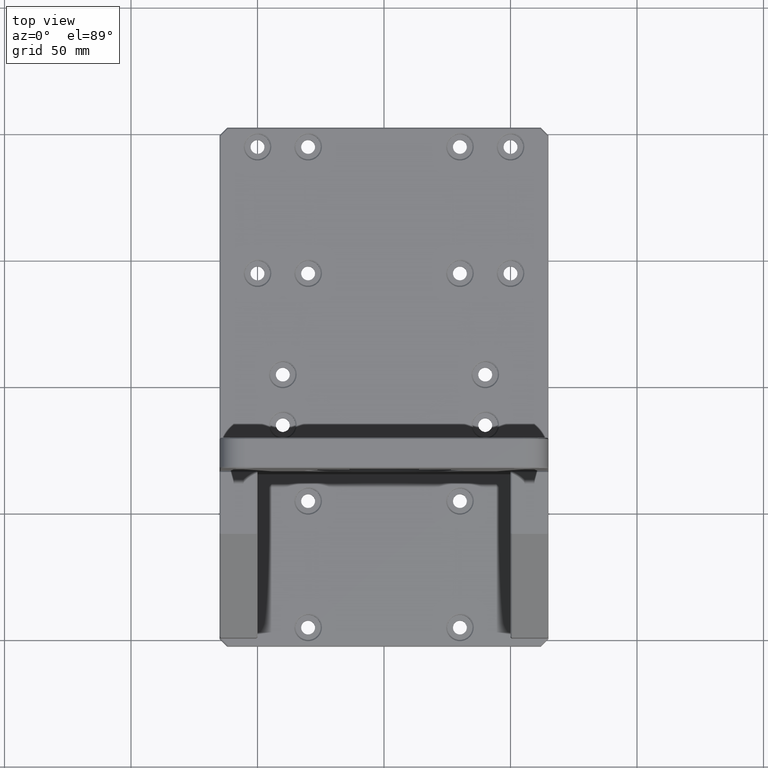
[diagram: clean part render]
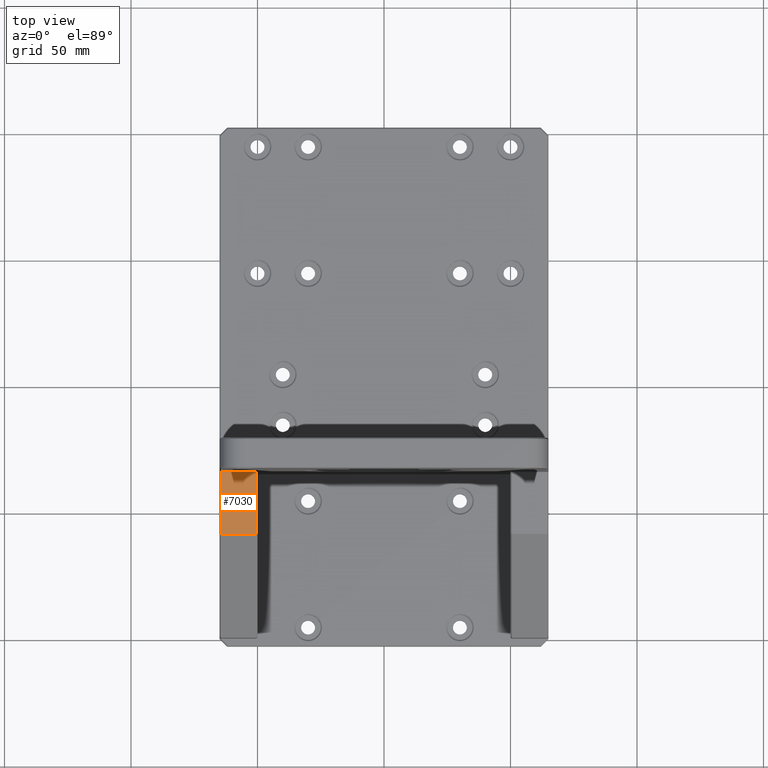
[diagram: same view with one face highlighted and labeled with its STEP entity id]
A machine part, top view. The second image highlights one B-rep face of the part: STEP entity #7030.
In plain terms, the highlighted planar face has unit normal (-0, 0, -1).
Its self-contained STEP definition (entity closure, byte-faithful):
#492 = LINE ( 'NONE', #7105, #16573 ) ;
#768 = EDGE_CURVE ( 'NONE', #10651, #12928, #10952, .T. ) ;
#1242 = PLANE ( 'NONE',  #14084 ) ;
#3227 = LINE ( 'NONE', #4569, #6850 ) ;
#3827 = CARTESIAN_POINT ( 'NONE',  ( -64.49999999999820943, -59.50000000000093081, 92.00000000000066791 ) ) ;
#4341 = CARTESIAN_POINT ( 'NONE',  ( -64.99999999999819522, -59.50000000000093792, 92.00000000000066791 ) ) ;
#4569 = CARTESIAN_POINT ( 'NONE',  ( -50.49999999999852918, -34.50000000000073896, 92.00000000000051159 ) ) ;
#4677 = CARTESIAN_POINT ( 'NONE',  ( -50.49999999999818812, -59.50000000000073896, 92.00000000000051159 ) ) ;
#5360 = VECTOR ( 'NONE', #12146, 1000.000000000000000 ) ;
#5453 = DIRECTION ( 'NONE',  ( -1.000000000000000000, -1.396592535537253342E-14, 1.047444401652940007E-14 ) ) ;
#6514 = LINE ( 'NONE', #12230, #5360 ) ;
#6850 = VECTOR ( 'NONE', #10099, 1000.000000000000000 ) ;
#7030 = ADVANCED_FACE ( 'NONE', ( #17701 ), #1242, .F. ) ;
#7105 = CARTESIAN_POINT ( 'NONE',  ( -64.49999999999856470, -34.50000000000093081, 92.00000000000066791 ) ) ;
#7199 = VERTEX_POINT ( 'NONE', #15287 ) ;
#8343 = ORIENTED_EDGE ( 'NONE', *, *, #14279, .T. ) ;
#8445 = EDGE_CURVE ( 'NONE', #12928, #7199, #3227, .T. ) ;
#9378 = EDGE_LOOP ( 'NONE', ( #13752, #16443, #8343, #16110 ) ) ;
#9647 = CARTESIAN_POINT ( 'NONE',  ( -64.99999999999855049, -34.50000000000093792, 92.00000000000066791 ) ) ;
#10099 = DIRECTION ( 'NONE',  ( -1.396592535537253342E-14, 1.000000000000000000, 1.462853032738780738E-28 ) ) ;
#10651 = VERTEX_POINT ( 'NONE', #3827 ) ;
#10952 = LINE ( 'NONE', #4341, #15887 ) ;
#11035 = DIRECTION ( 'NONE',  ( 1.000000000000000000, 1.396592535537253342E-14, -1.047444401652940007E-14 ) ) ;
#12146 = DIRECTION ( 'NONE',  ( -1.000000000000000000, -1.396592535537253342E-14, 1.047444401652940007E-14 ) ) ;
#12230 = CARTESIAN_POINT ( 'NONE',  ( -64.99999999999855049, -35.00000000000092371, 92.00000000000066791 ) ) ;
#12928 = VERTEX_POINT ( 'NONE', #4677 ) ;
#13752 = ORIENTED_EDGE ( 'NONE', *, *, #768, .T. ) ;
#13762 = DIRECTION ( 'NONE',  ( -1.047444401652940007E-14, 0.0000000000000000000, -1.000000000000000000 ) ) ;
#13915 = CARTESIAN_POINT ( 'NONE',  ( -64.49999999999856470, -35.00000000000091660, 92.00000000000066791 ) ) ;
#14084 = AXIS2_PLACEMENT_3D ( 'NONE', #9647, #13762, #5453 ) ;
#14279 = EDGE_CURVE ( 'NONE', #7199, #17247, #6514, .T. ) ;
#15287 = CARTESIAN_POINT ( 'NONE',  ( -50.49999999999852207, -35.00000000000072475, 92.00000000000051159 ) ) ;
#15340 = DIRECTION ( 'NONE',  ( 1.396592535537253342E-14, -1.000000000000000000, -1.462853032738780738E-28 ) ) ;
#15887 = VECTOR ( 'NONE', #11035, 1000.000000000000000 ) ;
#16110 = ORIENTED_EDGE ( 'NONE', *, *, #16155, .T. ) ;
#16155 = EDGE_CURVE ( 'NONE', #17247, #10651, #492, .T. ) ;
#16443 = ORIENTED_EDGE ( 'NONE', *, *, #8445, .T. ) ;
#16573 = VECTOR ( 'NONE', #15340, 1000.000000000000000 ) ;
#17247 = VERTEX_POINT ( 'NONE', #13915 ) ;
#17701 = FACE_OUTER_BOUND ( 'NONE', #9378, .T. ) ;